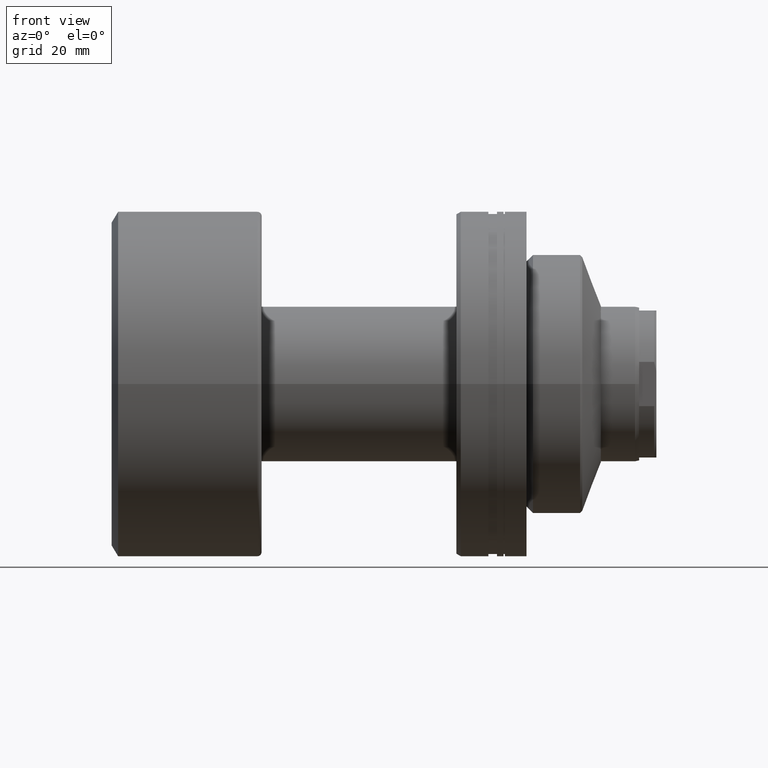
[diagram: clean part render]
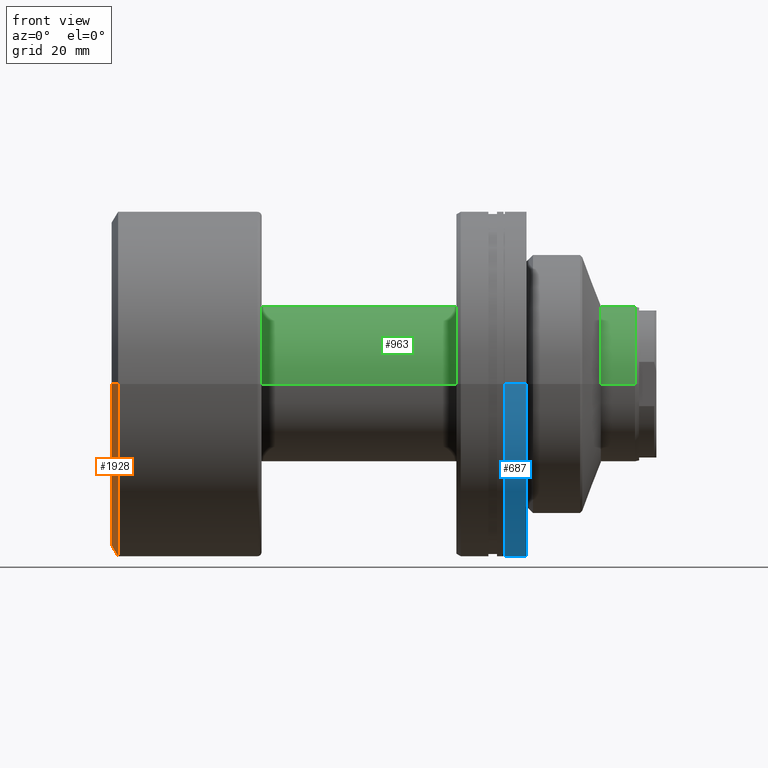
[diagram: same view with three faces highlighted in distinct colors, each labeled with its STEP entity id]
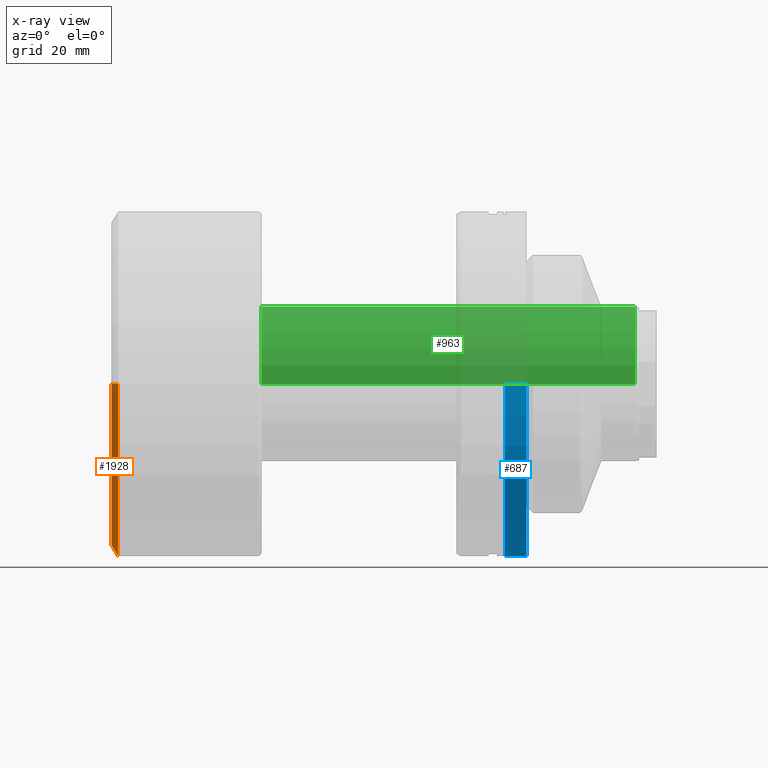
[diagram: x-ray of the same camera — body ghosted, the three highlighted faces saturated]
A machine part, front view with three faces highlighted in distinct colors.
The next image is the same camera in x-ray (body ghosted, the three faces saturated) — at least one of them is partly hidden behind the body in this view.
Their STEP definitions:

[orange] entity #1928 — the highlighted conical surface has half-angle 59.036 deg.
#56 = DIRECTION ( 'NONE',  ( 1.000000000000000000, 1.069542322069065801E-17, 0.000000000000000000 ) ) ;
#171 = DIRECTION ( 'NONE',  ( -1.000000000000000000, -1.069542322069065801E-17, -0.000000000000000000 ) ) ;
#216 = AXIS2_PLACEMENT_3D ( 'NONE', #887, #1453, #1605 ) ;
#224 = LINE ( 'NONE', #801, #1231 ) ;
#230 = CARTESIAN_POINT ( 'NONE',  ( 4.592425496802573578E-15, -37.49999999999999289, 4.592425496802573578E-15 ) ) ;
#252 = LINE ( 'NONE', #230, #2042 ) ;
#286 = CIRCLE ( 'NONE', #216, 39.99999999999999289 ) ;
#340 = EDGE_CURVE ( 'NONE', #2120, #1234, #473, .T. ) ;
#345 = CARTESIAN_POINT ( 'NONE',  ( 1.500000000000004219, 39.99999999999999289, 0.000000000000000000 ) ) ;
#361 = CARTESIAN_POINT ( 'NONE',  ( 4.191347126026673560E-15, 4.482823137768074044E-32, 0.000000000000000000 ) ) ;
#370 = VERTEX_POINT ( 'NONE', #345 ) ;
#410 = AXIS2_PLACEMENT_3D ( 'NONE', #793, #56, #1663 ) ;
#473 = CIRCLE ( 'NONE', #1778, 37.49999999999999289 ) ;
#599 = EDGE_CURVE ( 'NONE', #2120, #370, #224, .T. ) ;
#675 = EDGE_LOOP ( 'NONE', ( #901, #847, #2106, #1089 ) ) ;
#781 = CARTESIAN_POINT ( 'NONE',  ( 1.500000000000005107, -39.99999999999999289, 4.898587196589412237E-15 ) ) ;
#793 = CARTESIAN_POINT ( 'NONE',  ( 4.191347126026673560E-15, 4.482823137768074044E-32, 0.000000000000000000 ) ) ;
#801 = CARTESIAN_POINT ( 'NONE',  ( 3.790268755250773542E-15, 37.49999999999999289, 0.000000000000000000 ) ) ;
#847 = ORIENTED_EDGE ( 'NONE', *, *, #340, .F. ) ;
#887 = CARTESIAN_POINT ( 'NONE',  ( 1.500000000000004663, 1.604313483103603400E-17, 0.000000000000000000 ) ) ;
#901 = ORIENTED_EDGE ( 'NONE', *, *, #1094, .F. ) ;
#947 = DIRECTION ( 'NONE',  ( 0.5144957554275262357, -0.8574929257125444293, 1.050125966765366654E-16 ) ) ;
#1089 = ORIENTED_EDGE ( 'NONE', *, *, #1361, .T. ) ;
#1094 = EDGE_CURVE ( 'NONE', #1234, #1936, #252, .T. ) ;
#1117 = DIRECTION ( 'NONE',  ( 1.069542322069066725E-17, -1.000000000000000000, 0.000000000000000000 ) ) ;
#1210 = CARTESIAN_POINT ( 'NONE',  ( 4.592425496802573578E-15, -37.49999999999999289, 4.745506346695992513E-15 ) ) ;
#1231 = VECTOR ( 'NONE', #1518, 999.9999999999998863 ) ;
#1234 = VERTEX_POINT ( 'NONE', #1210 ) ;
#1354 = CONICAL_SURFACE ( 'NONE', #410, 37.49999999999999289, 1.030376826524312728 ) ;
#1361 = EDGE_CURVE ( 'NONE', #370, #1936, #286, .T. ) ;
#1453 = DIRECTION ( 'NONE',  ( -1.000000000000000000, -1.069542322069065801E-17, -0.000000000000000000 ) ) ;
#1494 = CARTESIAN_POINT ( 'NONE',  ( 3.790268755250773542E-15, 37.49999999999999289, 0.000000000000000000 ) ) ;
#1518 = DIRECTION ( 'NONE',  ( 0.5144957554275262357, 0.8574929257125444293, 0.000000000000000000 ) ) ;
#1605 = DIRECTION ( 'NONE',  ( 1.084202172485504588E-17, -1.000000000000000000, 0.000000000000000000 ) ) ;
#1663 = DIRECTION ( 'NONE',  ( -1.069542322069066725E-17, 1.000000000000000000, 0.000000000000000000 ) ) ;
#1778 = AXIS2_PLACEMENT_3D ( 'NONE', #361, #171, #1117 ) ;
#1928 = ADVANCED_FACE ( 'NONE', ( #2024 ), #1354, .T. ) ;
#1936 = VERTEX_POINT ( 'NONE', #781 ) ;
#2024 = FACE_OUTER_BOUND ( 'NONE', #675, .T. ) ;
#2042 = VECTOR ( 'NONE', #947, 999.9999999999998863 ) ;
#2106 = ORIENTED_EDGE ( 'NONE', *, *, #599, .T. ) ;
#2120 = VERTEX_POINT ( 'NONE', #1494 ) ;

[blue] entity #687 — the highlighted cylindrical surface (partial cylindrical patch) has radius 40 mm, axis along (1, 0, 0).
#14 = ORIENTED_EDGE ( 'NONE', *, *, #2100, .T. ) ;
#19 = DIRECTION ( 'NONE',  ( -3.469446951953613696E-16, 1.000000000000000000, 0.000000000000000000 ) ) ;
#122 = CYLINDRICAL_SURFACE ( 'NONE', #475, 40.00000000000000711 ) ;
#124 = VERTEX_POINT ( 'NONE', #965 ) ;
#167 = CARTESIAN_POINT ( 'NONE',  ( -30.28002276692733830, 40.00000000000000711, 0.000000000000000000 ) ) ;
#235 = CARTESIAN_POINT ( 'NONE',  ( -28.99999999999999645, -40.00000000000000711, 4.898587196589413815E-15 ) ) ;
#263 = VERTEX_POINT ( 'NONE', #2262 ) ;
#313 = CARTESIAN_POINT ( 'NONE',  ( -30.28002276692730987, -40.00000000000000711, 4.898587196589413815E-15 ) ) ;
#475 = AXIS2_PLACEMENT_3D ( 'NONE', #1016, #655, #845 ) ;
#564 = VECTOR ( 'NONE', #1750, 1000.000000000000000 ) ;
#568 = DIRECTION ( 'NONE',  ( 1.000000000000000000, 3.738146982434194072E-16, -0.000000000000000000 ) ) ;
#618 = AXIS2_PLACEMENT_3D ( 'NONE', #1312, #568, #19 ) ;
#655 = DIRECTION ( 'NONE',  ( 1.000000000000000000, 3.738146982434194072E-16, -0.000000000000000000 ) ) ;
#687 = ADVANCED_FACE ( 'NONE', ( #1367 ), #122, .T. ) ;
#804 = CARTESIAN_POINT ( 'NONE',  ( -23.99999999999999289, -40.00000000000000711, 4.898587196589413815E-15 ) ) ;
#845 = DIRECTION ( 'NONE',  ( -3.469446951953613696E-16, 1.000000000000000000, 0.000000000000000000 ) ) ;
#891 = DIRECTION ( 'NONE',  ( 1.000000000000000000, 3.738146982434194072E-16, -0.000000000000000000 ) ) ;
#935 = EDGE_CURVE ( 'NONE', #124, #263, #1774, .T. ) ;
#958 = CARTESIAN_POINT ( 'NONE',  ( -24.00000000000000711, 2.347564815580738247E-15, 0.000000000000000000 ) ) ;
#965 = CARTESIAN_POINT ( 'NONE',  ( -29.00000000000002487, 40.00000000000000711, 0.000000000000000000 ) ) ;
#1016 = CARTESIAN_POINT ( 'NONE',  ( -30.28002276692732408, 0.000000000000000000, 0.000000000000000000 ) ) ;
#1035 = EDGE_CURVE ( 'NONE', #1719, #263, #2079, .T. ) ;
#1113 = ORIENTED_EDGE ( 'NONE', *, *, #1902, .F. ) ;
#1306 = AXIS2_PLACEMENT_3D ( 'NONE', #958, #1525, #2201 ) ;
#1312 = CARTESIAN_POINT ( 'NONE',  ( -29.00000000000001066, 4.784913243636394851E-16, 0.000000000000000000 ) ) ;
#1346 = ORIENTED_EDGE ( 'NONE', *, *, #935, .T. ) ;
#1367 = FACE_OUTER_BOUND ( 'NONE', #1882, .T. ) ;
#1455 = ORIENTED_EDGE ( 'NONE', *, *, #1035, .F. ) ;
#1525 = DIRECTION ( 'NONE',  ( 1.000000000000000000, 3.738146982434194072E-16, -0.000000000000000000 ) ) ;
#1587 = CIRCLE ( 'NONE', #618, 40.00000000000000711 ) ;
#1719 = VERTEX_POINT ( 'NONE', #804 ) ;
#1750 = DIRECTION ( 'NONE',  ( 1.000000000000000000, 3.738146982434194072E-16, -0.000000000000000000 ) ) ;
#1774 = LINE ( 'NONE', #167, #1926 ) ;
#1882 = EDGE_LOOP ( 'NONE', ( #1113, #14, #1346, #1455 ) ) ;
#1902 = EDGE_CURVE ( 'NONE', #2034, #1719, #2149, .T. ) ;
#1926 = VECTOR ( 'NONE', #891, 1000.000000000000000 ) ;
#2034 = VERTEX_POINT ( 'NONE', #235 ) ;
#2079 = CIRCLE ( 'NONE', #1306, 40.00000000000000711 ) ;
#2100 = EDGE_CURVE ( 'NONE', #2034, #124, #1587, .T. ) ;
#2149 = LINE ( 'NONE', #313, #564 ) ;
#2201 = DIRECTION ( 'NONE',  ( -3.469446951953613696E-16, 1.000000000000000000, 0.000000000000000000 ) ) ;
#2262 = CARTESIAN_POINT ( 'NONE',  ( -24.00000000000002132, 40.00000000000000711, 0.000000000000000000 ) ) ;

[green] entity #963 — the highlighted cylindrical surface (partial cylindrical patch) has radius 18 mm, axis along (-1, -0, -0).
#36 = LINE ( 'NONE', #1674, #1145 ) ;
#46 = CARTESIAN_POINT ( 'NONE',  ( 34.70000000000000284, 3.711311857579658694E-16, 0.000000000000000000 ) ) ;
#146 = EDGE_LOOP ( 'NONE', ( #1561, #1407, #2193, #1875 ) ) ;
#181 = VERTEX_POINT ( 'NONE', #518 ) ;
#247 = DIRECTION ( 'NONE',  ( -1.000000000000000000, -1.069542322069065801E-17, -0.000000000000000000 ) ) ;
#280 = VECTOR ( 'NONE', #2180, 1000.000000000000000 ) ;
#394 = VERTEX_POINT ( 'NONE', #557 ) ;
#480 = CARTESIAN_POINT ( 'NONE',  ( 34.70000000000000284, 18.00000000000000000, 2.204364238465241739E-15 ) ) ;
#512 = AXIS2_PLACEMENT_3D ( 'NONE', #1166, #1479, #1833 ) ;
#518 = CARTESIAN_POINT ( 'NONE',  ( 121.0667575123237754, 18.00000000000019185, 2.204364238465259094E-15 ) ) ;
#519 = EDGE_CURVE ( 'NONE', #181, #661, #1869, .T. ) ;
#557 = CARTESIAN_POINT ( 'NONE',  ( 34.70000000000000284, -18.00000000000000000, 0.000000000000000000 ) ) ;
#661 = VERTEX_POINT ( 'NONE', #480 ) ;
#798 = FACE_OUTER_BOUND ( 'NONE', #146, .T. ) ;
#963 = ADVANCED_FACE ( 'NONE', ( #798 ), #971, .T. ) ;
#971 = CYLINDRICAL_SURFACE ( 'NONE', #512, 18.00000000000009592 ) ;
#1041 = AXIS2_PLACEMENT_3D ( 'NONE', #1405, #2121, #1944 ) ;
#1145 = VECTOR ( 'NONE', #1464, 1000.000000000000000 ) ;
#1166 = CARTESIAN_POINT ( 'NONE',  ( 0.000000000000000000, 0.000000000000000000, 0.000000000000000000 ) ) ;
#1328 = EDGE_CURVE ( 'NONE', #1920, #181, #1786, .T. ) ;
#1405 = CARTESIAN_POINT ( 'NONE',  ( 121.0667575123237754, 1.294860209551032895E-15, 0.000000000000000000 ) ) ;
#1407 = ORIENTED_EDGE ( 'NONE', *, *, #519, .T. ) ;
#1464 = DIRECTION ( 'NONE',  ( -1.000000000000000000, -1.069542322069065801E-17, -0.000000000000000000 ) ) ;
#1479 = DIRECTION ( 'NONE',  ( -1.000000000000000000, -1.069542322069065801E-17, -0.000000000000000000 ) ) ;
#1485 = DIRECTION ( 'NONE',  ( 0.000000000000000000, -1.000000000000000000, 0.000000000000000000 ) ) ;
#1496 = CARTESIAN_POINT ( 'NONE',  ( 121.0667575123237754, -18.00000000000019185, 0.000000000000000000 ) ) ;
#1561 = ORIENTED_EDGE ( 'NONE', *, *, #1328, .T. ) ;
#1674 = CARTESIAN_POINT ( 'NONE',  ( 1.925176179724328764E-16, -18.00000000000009592, 0.000000000000000000 ) ) ;
#1786 = CIRCLE ( 'NONE', #1041, 18.00000000000019185 ) ;
#1833 = DIRECTION ( 'NONE',  ( 1.069542322069065801E-17, -1.000000000000000000, 0.000000000000000000 ) ) ;
#1869 = LINE ( 'NONE', #2215, #280 ) ;
#1875 = ORIENTED_EDGE ( 'NONE', *, *, #2047, .F. ) ;
#1920 = VERTEX_POINT ( 'NONE', #1496 ) ;
#1944 = DIRECTION ( 'NONE',  ( 0.000000000000000000, -1.000000000000000000, 0.000000000000000000 ) ) ;
#2000 = EDGE_CURVE ( 'NONE', #394, #661, #2014, .T. ) ;
#2014 = CIRCLE ( 'NONE', #2306, 18.00000000000000000 ) ;
#2047 = EDGE_CURVE ( 'NONE', #1920, #394, #36, .T. ) ;
#2121 = DIRECTION ( 'NONE',  ( -1.000000000000000000, -1.069542322069065801E-17, -0.000000000000000000 ) ) ;
#2180 = DIRECTION ( 'NONE',  ( -1.000000000000000000, -1.069542322069065801E-17, -0.000000000000000000 ) ) ;
#2193 = ORIENTED_EDGE ( 'NONE', *, *, #2000, .F. ) ;
#2215 = CARTESIAN_POINT ( 'NONE',  ( -1.925176179724328764E-16, 18.00000000000009592, 2.204364238465247261E-15 ) ) ;
#2306 = AXIS2_PLACEMENT_3D ( 'NONE', #46, #247, #1485 ) ;